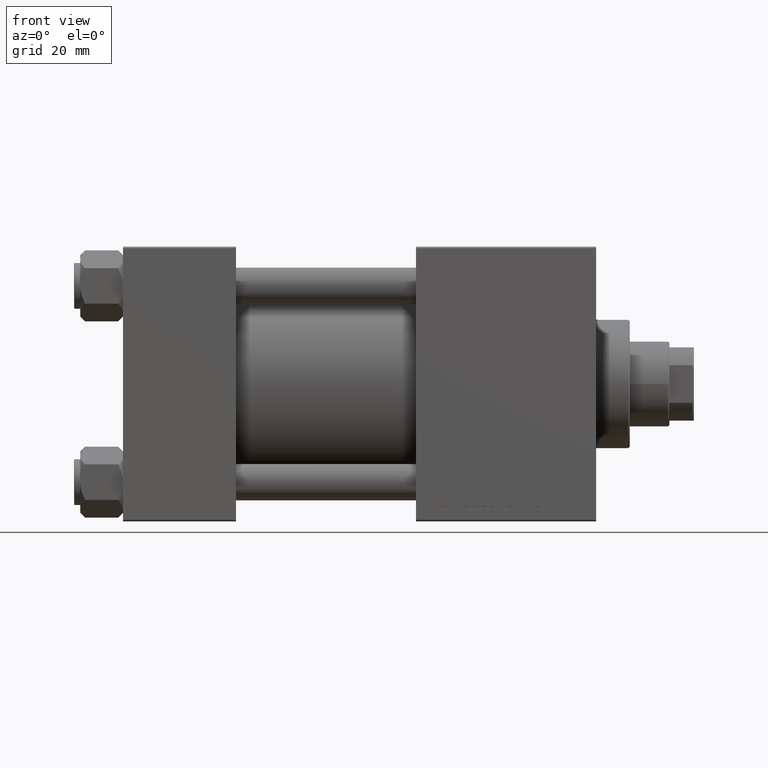
[diagram: clean part render]
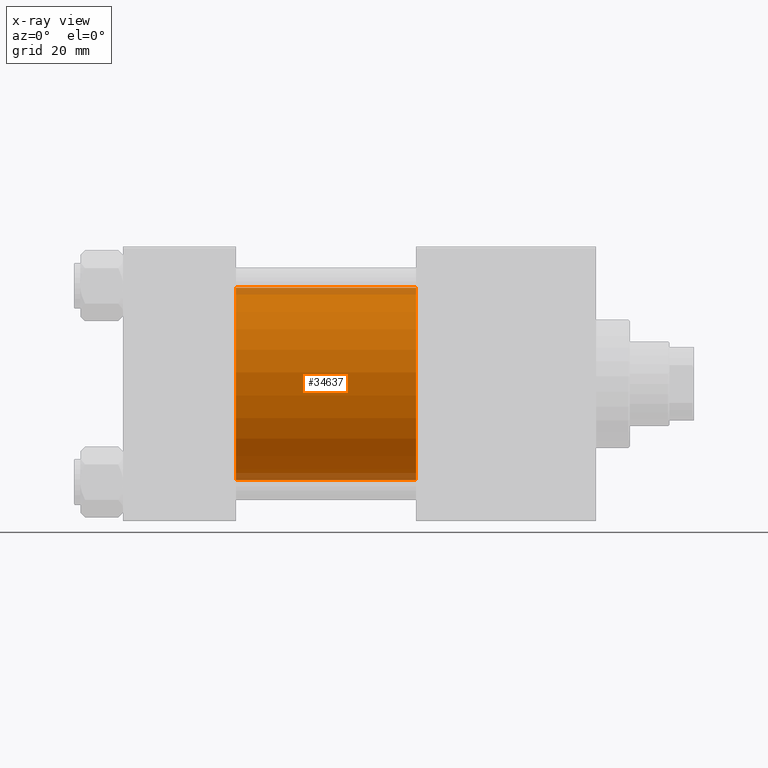
[diagram: x-ray — body ghosted, one internal face saturated and labeled with its STEP entity id]
A machine part, front view, then the same camera in x-ray: the body is ghosted and one INTERNAL B-rep face — a face not visible from any outside direction — is saturated and labeled: STEP entity #34637.
In plain terms, the highlighted cylindrical surface (partial cylindrical patch) has radius 31.5 mm, axis along (-1, -0, -0).
Its self-contained STEP definition (entity closure, byte-faithful):
#1626 = CARTESIAN_POINT ( 'NONE',  ( 96.00000000000000000, 1.255552203348951850E-15, -31.50000000000000000 ) ) ;
#2910 = ORIENTED_EDGE ( 'NONE', *, *, #32121, .F. ) ;
#4271 = EDGE_CURVE ( 'NONE', #42252, #13281, #15348, .T. ) ;
#4694 = DIRECTION ( 'NONE',  ( -1.000000000000000000, -0.000000000000000000, -0.000000000000000000 ) ) ;
#5366 = ORIENTED_EDGE ( 'NONE', *, *, #4271, .F. ) ;
#6629 = VERTEX_POINT ( 'NONE', #46658 ) ;
#7876 = VECTOR ( 'NONE', #23233, 1000.000000000000000 ) ;
#10018 = AXIS2_PLACEMENT_3D ( 'NONE', #40666, #10095, #36853 ) ;
#10095 = DIRECTION ( 'NONE',  ( -1.000000000000000000, -0.000000000000000000, -0.000000000000000000 ) ) ;
#10749 = ORIENTED_EDGE ( 'NONE', *, *, #29559, .T. ) ;
#13105 = LINE ( 'NONE', #1626, #40449 ) ;
#13281 = VERTEX_POINT ( 'NONE', #47900 ) ;
#15348 = LINE ( 'NONE', #19427, #7876 ) ;
#16425 = AXIS2_PLACEMENT_3D ( 'NONE', #24713, #38792, #19461 ) ;
#17080 = EDGE_CURVE ( 'NONE', #21089, #6629, #13105, .T. ) ;
#17761 = CYLINDRICAL_SURFACE ( 'NONE', #10018, 31.50000000000000000 ) ;
#19427 = CARTESIAN_POINT ( 'NONE',  ( 96.00000000000000000, -2.602085213965210642E-15, 31.50000000000000000 ) ) ;
#19461 = DIRECTION ( 'NONE',  ( 0.000000000000000000, 0.000000000000000000, -1.000000000000000000 ) ) ;
#19593 = CARTESIAN_POINT ( 'NONE',  ( 96.00000000000000000, -2.602085213965210642E-15, 31.50000000000000000 ) ) ;
#21089 = VERTEX_POINT ( 'NONE', #21147 ) ;
#21147 = CARTESIAN_POINT ( 'NONE',  ( 96.00000000000000000, 1.255552203348951850E-15, -31.50000000000000000 ) ) ;
#23233 = DIRECTION ( 'NONE',  ( -1.000000000000000000, -0.000000000000000000, -0.000000000000000000 ) ) ;
#24713 = CARTESIAN_POINT ( 'NONE',  ( 37.00000000000000000, -2.602085213965210642E-15, 0.000000000000000000 ) ) ;
#24861 = DIRECTION ( 'NONE',  ( 1.000000000000000000, 0.000000000000000000, 0.000000000000000000 ) ) ;
#25143 = FACE_OUTER_BOUND ( 'NONE', #39548, .T. ) ;
#27268 = ORIENTED_EDGE ( 'NONE', *, *, #17080, .T. ) ;
#28690 = DIRECTION ( 'NONE',  ( 0.000000000000000000, 0.000000000000000000, -1.000000000000000000 ) ) ;
#29559 = EDGE_CURVE ( 'NONE', #42252, #21089, #48908, .T. ) ;
#30235 = CIRCLE ( 'NONE', #16425, 31.50000000000000000 ) ;
#32121 = EDGE_CURVE ( 'NONE', #13281, #6629, #30235, .T. ) ;
#34637 = ADVANCED_FACE ( 'NONE', ( #25143 ), #17761, .F. ) ;
#36324 = CARTESIAN_POINT ( 'NONE',  ( 96.00000000000000000, -2.602085213965210642E-15, 0.000000000000000000 ) ) ;
#36679 = AXIS2_PLACEMENT_3D ( 'NONE', #36324, #24861, #28690 ) ;
#36853 = DIRECTION ( 'NONE',  ( 0.000000000000000000, 0.000000000000000000, 1.000000000000000000 ) ) ;
#38792 = DIRECTION ( 'NONE',  ( 1.000000000000000000, 0.000000000000000000, 0.000000000000000000 ) ) ;
#39548 = EDGE_LOOP ( 'NONE', ( #10749, #27268, #2910, #5366 ) ) ;
#40449 = VECTOR ( 'NONE', #4694, 1000.000000000000000 ) ;
#40666 = CARTESIAN_POINT ( 'NONE',  ( 96.00000000000000000, -2.602085213965210642E-15, 0.000000000000000000 ) ) ;
#42252 = VERTEX_POINT ( 'NONE', #19593 ) ;
#46658 = CARTESIAN_POINT ( 'NONE',  ( 37.00000000000000000, 1.255552203348951850E-15, -31.50000000000000000 ) ) ;
#47900 = CARTESIAN_POINT ( 'NONE',  ( 37.00000000000000000, -2.602085213965210642E-15, 31.50000000000000000 ) ) ;
#48908 = CIRCLE ( 'NONE', #36679, 31.50000000000000000 ) ;